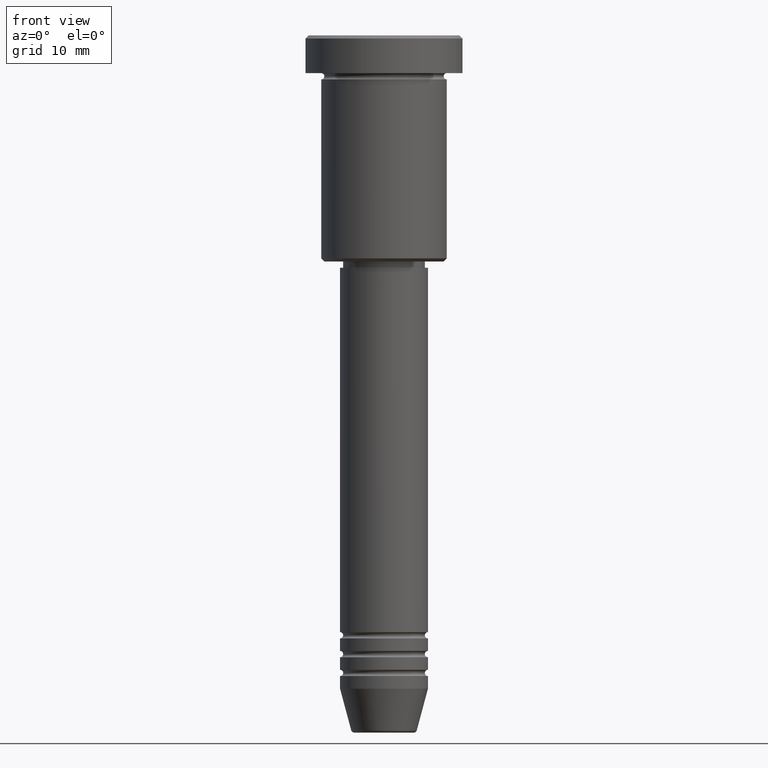
[diagram: clean part render]
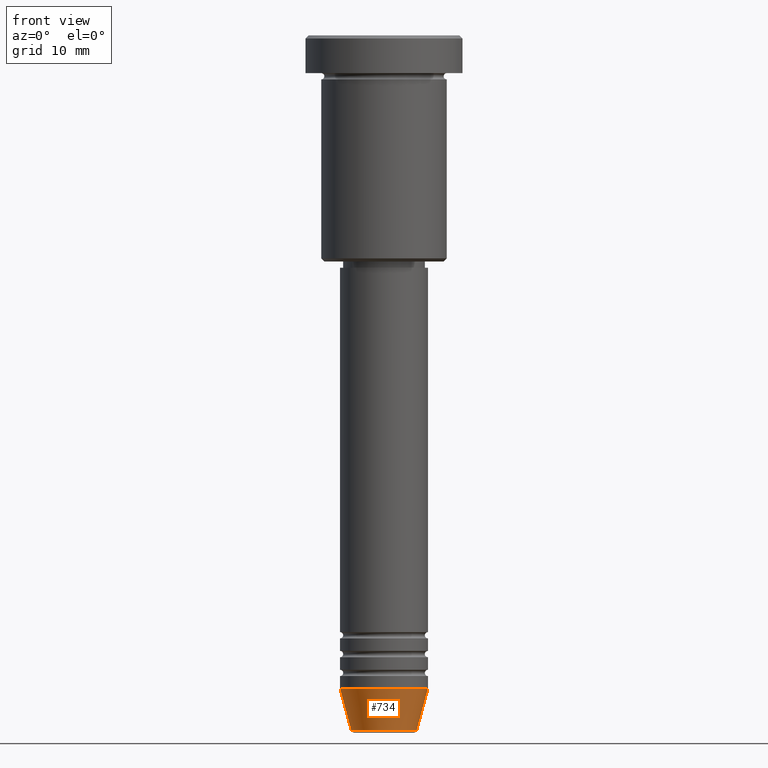
[diagram: same view with one face highlighted and labeled with its STEP entity id]
A machine part, front view. The second image highlights one B-rep face of the part: STEP entity #734.
In plain terms, the highlighted conical surface has half-angle 15 deg.
Its self-contained STEP definition (entity closure, byte-faithful):
#25 = ORIENTED_EDGE ( 'NONE', *, *, #780, .T. ) ;
#59 = ORIENTED_EDGE ( 'NONE', *, *, #997, .F. ) ;
#110 = CIRCLE ( 'NONE', #278, 7.000000000000000000 ) ;
#121 = VERTEX_POINT ( 'NONE', #582 ) ;
#150 = AXIS2_PLACEMENT_3D ( 'NONE', #882, #340, #428 ) ;
#161 = VERTEX_POINT ( 'NONE', #487 ) ;
#205 = LINE ( 'NONE', #567, #585 ) ;
#240 = CARTESIAN_POINT ( 'NONE',  ( 0.000000000000000000, 0.000000000000000000, -110.6294095225512564 ) ) ;
#243 = CARTESIAN_POINT ( 'NONE',  ( 7.000000000000000000, 0.000000000000000000, -104.0000000000000142 ) ) ;
#278 = AXIS2_PLACEMENT_3D ( 'NONE', #1131, #1047, #944 ) ;
#331 = VERTEX_POINT ( 'NONE', #243 ) ;
#340 = DIRECTION ( 'NONE',  ( -0.000000000000000000, -0.000000000000000000, 1.000000000000000000 ) ) ;
#343 = AXIS2_PLACEMENT_3D ( 'NONE', #240, #983, #610 ) ;
#352 = LINE ( 'NONE', #719, #894 ) ;
#385 = VERTEX_POINT ( 'NONE', #751 ) ;
#428 = DIRECTION ( 'NONE',  ( 1.000000000000000000, 0.000000000000000000, 0.000000000000000000 ) ) ;
#487 = CARTESIAN_POINT ( 'NONE',  ( -5.223655072137193045, 7.484830028987060174E-16, -110.6294095225512564 ) ) ;
#491 = CONICAL_SURFACE ( 'NONE', #150, 7.000000000000000000, 0.2617993877991500740 ) ;
#494 = DIRECTION ( 'NONE',  ( -0.2588190451025213501, 3.169619151431772337E-17, 0.9659258262890680902 ) ) ;
#567 = CARTESIAN_POINT ( 'NONE',  ( -7.000000000000000000, 8.572527594031473190E-16, -104.0000000000000142 ) ) ;
#582 = CARTESIAN_POINT ( 'NONE',  ( 5.223655072137193045, 0.000000000000000000, -110.6294095225512564 ) ) ;
#585 = VECTOR ( 'NONE', #494, 1000.000000000000000 ) ;
#610 = DIRECTION ( 'NONE',  ( 1.000000000000000000, 0.000000000000000000, 0.000000000000000000 ) ) ;
#662 = ORIENTED_EDGE ( 'NONE', *, *, #1175, .T. ) ;
#664 = CIRCLE ( 'NONE', #343, 5.223655072137193045 ) ;
#719 = CARTESIAN_POINT ( 'NONE',  ( 7.000000000000000000, 0.000000000000000000, -104.0000000000000142 ) ) ;
#734 = ADVANCED_FACE ( 'NONE', ( #1068 ), #491, .T. ) ;
#751 = CARTESIAN_POINT ( 'NONE',  ( -7.000000000000000000, 8.572527594031473190E-16, -104.0000000000000142 ) ) ;
#780 = EDGE_CURVE ( 'NONE', #161, #121, #664, .T. ) ;
#882 = CARTESIAN_POINT ( 'NONE',  ( 0.000000000000000000, 0.000000000000000000, -104.0000000000000142 ) ) ;
#894 = VECTOR ( 'NONE', #971, 1000.000000000000000 ) ;
#944 = DIRECTION ( 'NONE',  ( 1.000000000000000000, 0.000000000000000000, 0.000000000000000000 ) ) ;
#963 = EDGE_CURVE ( 'NONE', #161, #385, #205, .T. ) ;
#971 = DIRECTION ( 'NONE',  ( 0.2588190451025213501, 0.000000000000000000, 0.9659258262890680902 ) ) ;
#976 = EDGE_LOOP ( 'NONE', ( #999, #25, #662, #59 ) ) ;
#983 = DIRECTION ( 'NONE',  ( -0.000000000000000000, -0.000000000000000000, 1.000000000000000000 ) ) ;
#997 = EDGE_CURVE ( 'NONE', #385, #331, #110, .T. ) ;
#999 = ORIENTED_EDGE ( 'NONE', *, *, #963, .F. ) ;
#1047 = DIRECTION ( 'NONE',  ( -0.000000000000000000, -0.000000000000000000, 1.000000000000000000 ) ) ;
#1068 = FACE_OUTER_BOUND ( 'NONE', #976, .T. ) ;
#1131 = CARTESIAN_POINT ( 'NONE',  ( 0.000000000000000000, 0.000000000000000000, -104.0000000000000142 ) ) ;
#1175 = EDGE_CURVE ( 'NONE', #121, #331, #352, .T. ) ;